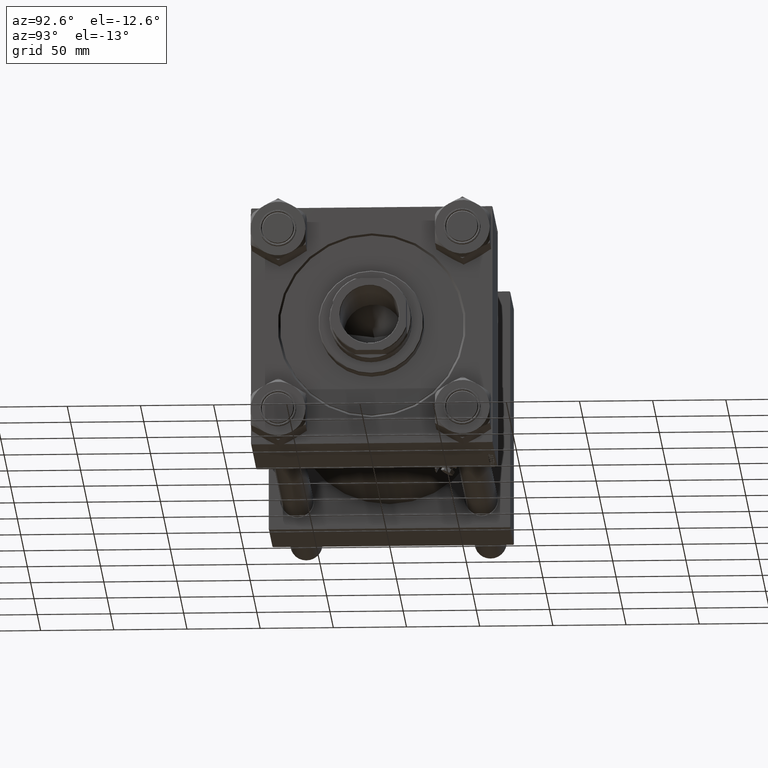
[diagram: clean part render]
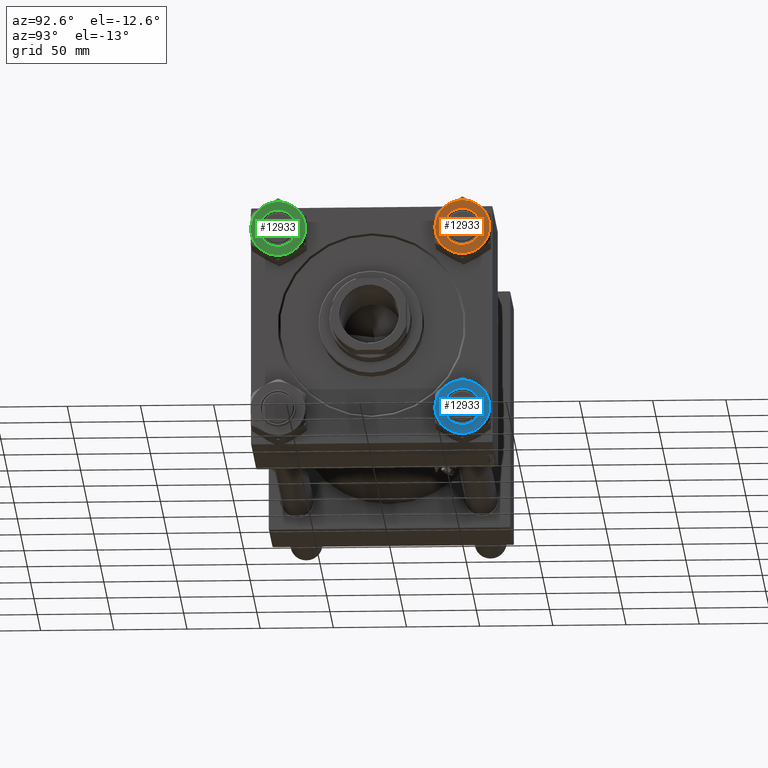
[diagram: same view with three faces highlighted in distinct colors, each labeled with its STEP entity id]
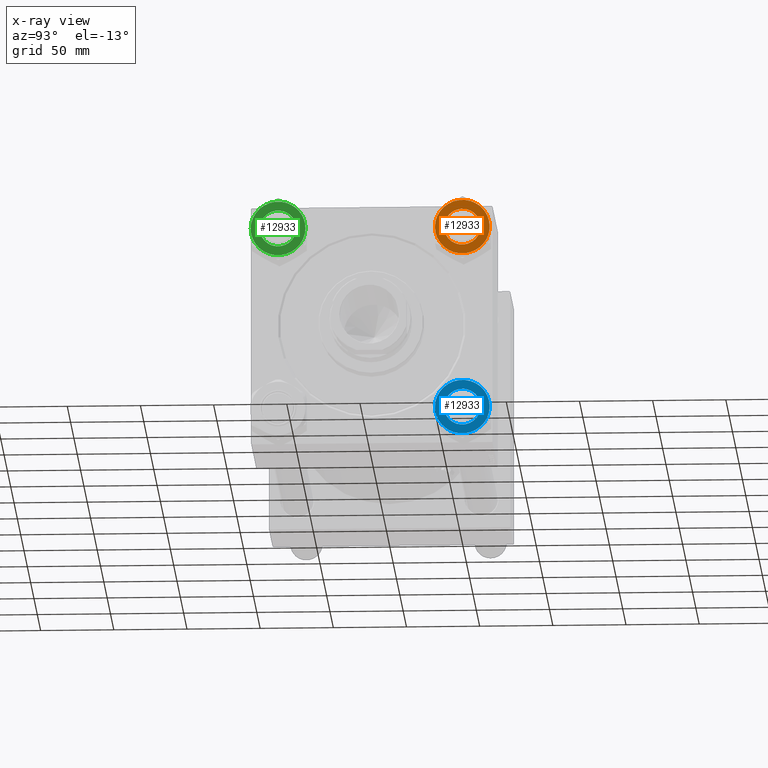
[diagram: x-ray of the same camera — body ghosted, the three highlighted faces saturated]
A machine part, auxiliary view with three faces highlighted in distinct colors.
The next image is the same camera in x-ray (body ghosted, the three faces saturated) — at least one of them is partly hidden behind the body in this view.
Their STEP definitions:

[orange] entity #12933 — the highlighted planar face has unit normal (-1, 0, 0).
#135 = DIRECTION ( 'NONE',  ( 0.000000000000000000, 0.000000000000000000, -1.000000000000000000 ) ) ;
#1290 = CIRCLE ( 'NONE', #46971, 18.72346922981956041 ) ;
#1844 = EDGE_LOOP ( 'NONE', ( #8580, #41072 ) ) ;
#2152 = VERTEX_POINT ( 'NONE', #36963 ) ;
#2811 = EDGE_CURVE ( 'NONE', #46040, #33059, #42408, .T. ) ;
#4486 = DIRECTION ( 'NONE',  ( 0.000000000000000000, -0.000000000000000000, -1.000000000000000000 ) ) ;
#4624 = CIRCLE ( 'NONE', #6256, 18.72346922981956041 ) ;
#4825 = DIRECTION ( 'NONE',  ( 1.000000000000000000, 0.000000000000000000, 0.000000000000000000 ) ) ;
#6256 = AXIS2_PLACEMENT_3D ( 'NONE', #47122, #28378, #11766 ) ;
#6303 = CARTESIAN_POINT ( 'NONE',  ( 0.000000000000000000, 0.000000000000000000, 0.000000000000000000 ) ) ;
#7354 = ORIENTED_EDGE ( 'NONE', *, *, #18723, .F. ) ;
#8580 = ORIENTED_EDGE ( 'NONE', *, *, #46006, .F. ) ;
#8657 = CARTESIAN_POINT ( 'NONE',  ( 0.000000000000000000, 0.000000000000000000, 0.000000000000000000 ) ) ;
#8703 = DIRECTION ( 'NONE',  ( -1.000000000000000000, 0.000000000000000000, -0.000000000000000000 ) ) ;
#8876 = VERTEX_POINT ( 'NONE', #26591 ) ;
#10019 = DIRECTION ( 'NONE',  ( -1.000000000000000000, 0.000000000000000000, 0.000000000000000000 ) ) ;
#10195 = AXIS2_PLACEMENT_3D ( 'NONE', #44202, #36151, #16409 ) ;
#10403 = ORIENTED_EDGE ( 'NONE', *, *, #49753, .T. ) ;
#10541 = CIRCLE ( 'NONE', #49585, 18.72346922981956041 ) ;
#10887 = DIRECTION ( 'NONE',  ( -1.000000000000000000, 0.000000000000000000, 0.000000000000000000 ) ) ;
#11766 = DIRECTION ( 'NONE',  ( -1.000000000000000000, 0.000000000000000000, 0.000000000000000000 ) ) ;
#12025 = AXIS2_PLACEMENT_3D ( 'NONE', #19652, #135, #8703 ) ;
#12220 = VERTEX_POINT ( 'NONE', #43424 ) ;
#12933 = ADVANCED_FACE ( 'NONE', ( #16511, #28194 ), #39380, .F. ) ;
#13539 = CIRCLE ( 'NONE', #10195, 12.50000000000000000 ) ;
#14027 = CARTESIAN_POINT ( 'NONE',  ( 12.50000000000000000, 1.530808498934191521E-15, 0.000000000000000000 ) ) ;
#14271 = EDGE_CURVE ( 'NONE', #30986, #12220, #1290, .T. ) ;
#15325 = EDGE_CURVE ( 'NONE', #2152, #46040, #25300, .T. ) ;
#15718 = VERTEX_POINT ( 'NONE', #41925 ) ;
#16409 = DIRECTION ( 'NONE',  ( 1.000000000000000000, 0.000000000000000000, 0.000000000000000000 ) ) ;
#16511 = FACE_BOUND ( 'NONE', #1844, .T. ) ;
#16724 = DIRECTION ( 'NONE',  ( -1.000000000000000000, 0.000000000000000000, 0.000000000000000000 ) ) ;
#16800 = VERTEX_POINT ( 'NONE', #14027 ) ;
#18723 = EDGE_CURVE ( 'NONE', #8876, #30986, #4624, .T. ) ;
#19652 = CARTESIAN_POINT ( 'NONE',  ( 0.000000000000000000, 0.000000000000000000, 0.000000000000000000 ) ) ;
#19812 = CIRCLE ( 'NONE', #27300, 18.72346922981956041 ) ;
#20456 = DIRECTION ( 'NONE',  ( 0.000000000000000000, 0.000000000000000000, 1.000000000000000000 ) ) ;
#21726 = CARTESIAN_POINT ( 'NONE',  ( 0.000000000000000000, 0.000000000000000000, 0.000000000000000000 ) ) ;
#22140 = ORIENTED_EDGE ( 'NONE', *, *, #25355, .F. ) ;
#22166 = DIRECTION ( 'NONE',  ( 0.000000000000000000, 0.000000000000000000, 1.000000000000000000 ) ) ;
#25300 = CIRCLE ( 'NONE', #27779, 18.72346922981956041 ) ;
#25355 = EDGE_CURVE ( 'NONE', #12220, #37404, #19812, .T. ) ;
#25364 = AXIS2_PLACEMENT_3D ( 'NONE', #8657, #4486, #16724 ) ;
#26591 = CARTESIAN_POINT ( 'NONE',  ( 16.21499999999998920, 9.361734614909789087, 0.000000000000000000 ) ) ;
#27300 = AXIS2_PLACEMENT_3D ( 'NONE', #49988, #30499, #49737 ) ;
#27483 = ORIENTED_EDGE ( 'NONE', *, *, #14271, .F. ) ;
#27779 = AXIS2_PLACEMENT_3D ( 'NONE', #21726, #49276, #10019 ) ;
#27794 = ORIENTED_EDGE ( 'NONE', *, *, #48616, .F. ) ;
#28086 = CARTESIAN_POINT ( 'NONE',  ( 0.000000000000000000, 0.000000000000000000, 0.000000000000000000 ) ) ;
#28194 = FACE_OUTER_BOUND ( 'NONE', #48655, .T. ) ;
#28378 = DIRECTION ( 'NONE',  ( 0.000000000000000000, -0.000000000000000000, -1.000000000000000000 ) ) ;
#30340 = CIRCLE ( 'NONE', #25364, 18.72346922981956041 ) ;
#30499 = DIRECTION ( 'NONE',  ( 0.000000000000000000, -0.000000000000000000, -1.000000000000000000 ) ) ;
#30933 = ORIENTED_EDGE ( 'NONE', *, *, #15325, .F. ) ;
#30986 = VERTEX_POINT ( 'NONE', #50478 ) ;
#32382 = CARTESIAN_POINT ( 'NONE',  ( 0.000000000000000000, 0.000000000000000000, 0.000000000000000000 ) ) ;
#33058 = CARTESIAN_POINT ( 'NONE',  ( -1.502314598737160570E-14, 18.72346922981957817, 0.000000000000000000 ) ) ;
#33059 = VERTEX_POINT ( 'NONE', #33058 ) ;
#33242 = AXIS2_PLACEMENT_3D ( 'NONE', #39714, #35822, #10887 ) ;
#35822 = DIRECTION ( 'NONE',  ( 0.000000000000000000, -0.000000000000000000, -1.000000000000000000 ) ) ;
#36151 = DIRECTION ( 'NONE',  ( 0.000000000000000000, 0.000000000000000000, 1.000000000000000000 ) ) ;
#36963 = CARTESIAN_POINT ( 'NONE',  ( -16.21499999999999275, -9.361734614909785535, 0.000000000000000000 ) ) ;
#37178 = ORIENTED_EDGE ( 'NONE', *, *, #2811, .F. ) ;
#37404 = VERTEX_POINT ( 'NONE', #39327 ) ;
#38370 = EDGE_CURVE ( 'NONE', #16800, #15718, #13539, .T. ) ;
#39327 = CARTESIAN_POINT ( 'NONE',  ( 1.802777518484590916E-14, -18.72346922981956041, 0.000000000000000000 ) ) ;
#39380 = PLANE ( 'NONE',  #12025 ) ;
#39714 = CARTESIAN_POINT ( 'NONE',  ( 0.000000000000000000, 0.000000000000000000, 0.000000000000000000 ) ) ;
#40033 = DIRECTION ( 'NONE',  ( -1.000000000000000000, 0.000000000000000000, 0.000000000000000000 ) ) ;
#41072 = ORIENTED_EDGE ( 'NONE', *, *, #38370, .F. ) ;
#41864 = AXIS2_PLACEMENT_3D ( 'NONE', #32382, #20456, #4825 ) ;
#41925 = CARTESIAN_POINT ( 'NONE',  ( -12.50000000000000000, 0.000000000000000000, 0.000000000000000000 ) ) ;
#41991 = CARTESIAN_POINT ( 'NONE',  ( -16.21499999999999986, 9.361734614909769547, 0.000000000000000000 ) ) ;
#42408 = CIRCLE ( 'NONE', #33242, 18.72346922981956041 ) ;
#43424 = CARTESIAN_POINT ( 'NONE',  ( 16.21500000000000341, -9.361734614909767771, 0.000000000000000000 ) ) ;
#44202 = CARTESIAN_POINT ( 'NONE',  ( 0.000000000000000000, 0.000000000000000000, 0.000000000000000000 ) ) ;
#46006 = EDGE_CURVE ( 'NONE', #15718, #16800, #48628, .T. ) ;
#46040 = VERTEX_POINT ( 'NONE', #41991 ) ;
#46971 = AXIS2_PLACEMENT_3D ( 'NONE', #28086, #48092, #40033 ) ;
#47122 = CARTESIAN_POINT ( 'NONE',  ( 0.000000000000000000, 0.000000000000000000, 0.000000000000000000 ) ) ;
#48092 = DIRECTION ( 'NONE',  ( 0.000000000000000000, -0.000000000000000000, -1.000000000000000000 ) ) ;
#48616 = EDGE_CURVE ( 'NONE', #37404, #2152, #30340, .T. ) ;
#48628 = CIRCLE ( 'NONE', #41864, 12.50000000000000000 ) ;
#48655 = EDGE_LOOP ( 'NONE', ( #37178, #30933, #27794, #22140, #27483, #7354, #10403 ) ) ;
#48945 = DIRECTION ( 'NONE',  ( 1.000000000000000000, 0.000000000000000000, 0.000000000000000000 ) ) ;
#49276 = DIRECTION ( 'NONE',  ( 0.000000000000000000, -0.000000000000000000, -1.000000000000000000 ) ) ;
#49585 = AXIS2_PLACEMENT_3D ( 'NONE', #6303, #22166, #48945 ) ;
#49737 = DIRECTION ( 'NONE',  ( -1.000000000000000000, 0.000000000000000000, 0.000000000000000000 ) ) ;
#49753 = EDGE_CURVE ( 'NONE', #8876, #33059, #10541, .T. ) ;
#49988 = CARTESIAN_POINT ( 'NONE',  ( 0.000000000000000000, 0.000000000000000000, 0.000000000000000000 ) ) ;
#50478 = CARTESIAN_POINT ( 'NONE',  ( 18.72346922981956041, 0.000000000000000000, 0.000000000000000000 ) ) ;

[blue] entity #12933 — the highlighted planar face has unit normal (-1, 0, -0).
#135 = DIRECTION ( 'NONE',  ( 0.000000000000000000, 0.000000000000000000, -1.000000000000000000 ) ) ;
#1290 = CIRCLE ( 'NONE', #46971, 18.72346922981956041 ) ;
#1844 = EDGE_LOOP ( 'NONE', ( #8580, #41072 ) ) ;
#2152 = VERTEX_POINT ( 'NONE', #36963 ) ;
#2811 = EDGE_CURVE ( 'NONE', #46040, #33059, #42408, .T. ) ;
#4486 = DIRECTION ( 'NONE',  ( 0.000000000000000000, -0.000000000000000000, -1.000000000000000000 ) ) ;
#4624 = CIRCLE ( 'NONE', #6256, 18.72346922981956041 ) ;
#4825 = DIRECTION ( 'NONE',  ( 1.000000000000000000, 0.000000000000000000, 0.000000000000000000 ) ) ;
#6256 = AXIS2_PLACEMENT_3D ( 'NONE', #47122, #28378, #11766 ) ;
#6303 = CARTESIAN_POINT ( 'NONE',  ( 0.000000000000000000, 0.000000000000000000, 0.000000000000000000 ) ) ;
#7354 = ORIENTED_EDGE ( 'NONE', *, *, #18723, .F. ) ;
#8580 = ORIENTED_EDGE ( 'NONE', *, *, #46006, .F. ) ;
#8657 = CARTESIAN_POINT ( 'NONE',  ( 0.000000000000000000, 0.000000000000000000, 0.000000000000000000 ) ) ;
#8703 = DIRECTION ( 'NONE',  ( -1.000000000000000000, 0.000000000000000000, -0.000000000000000000 ) ) ;
#8876 = VERTEX_POINT ( 'NONE', #26591 ) ;
#10019 = DIRECTION ( 'NONE',  ( -1.000000000000000000, 0.000000000000000000, 0.000000000000000000 ) ) ;
#10195 = AXIS2_PLACEMENT_3D ( 'NONE', #44202, #36151, #16409 ) ;
#10403 = ORIENTED_EDGE ( 'NONE', *, *, #49753, .T. ) ;
#10541 = CIRCLE ( 'NONE', #49585, 18.72346922981956041 ) ;
#10887 = DIRECTION ( 'NONE',  ( -1.000000000000000000, 0.000000000000000000, 0.000000000000000000 ) ) ;
#11766 = DIRECTION ( 'NONE',  ( -1.000000000000000000, 0.000000000000000000, 0.000000000000000000 ) ) ;
#12025 = AXIS2_PLACEMENT_3D ( 'NONE', #19652, #135, #8703 ) ;
#12220 = VERTEX_POINT ( 'NONE', #43424 ) ;
#12933 = ADVANCED_FACE ( 'NONE', ( #16511, #28194 ), #39380, .F. ) ;
#13539 = CIRCLE ( 'NONE', #10195, 12.50000000000000000 ) ;
#14027 = CARTESIAN_POINT ( 'NONE',  ( 12.50000000000000000, 1.530808498934191521E-15, 0.000000000000000000 ) ) ;
#14271 = EDGE_CURVE ( 'NONE', #30986, #12220, #1290, .T. ) ;
#15325 = EDGE_CURVE ( 'NONE', #2152, #46040, #25300, .T. ) ;
#15718 = VERTEX_POINT ( 'NONE', #41925 ) ;
#16409 = DIRECTION ( 'NONE',  ( 1.000000000000000000, 0.000000000000000000, 0.000000000000000000 ) ) ;
#16511 = FACE_BOUND ( 'NONE', #1844, .T. ) ;
#16724 = DIRECTION ( 'NONE',  ( -1.000000000000000000, 0.000000000000000000, 0.000000000000000000 ) ) ;
#16800 = VERTEX_POINT ( 'NONE', #14027 ) ;
#18723 = EDGE_CURVE ( 'NONE', #8876, #30986, #4624, .T. ) ;
#19652 = CARTESIAN_POINT ( 'NONE',  ( 0.000000000000000000, 0.000000000000000000, 0.000000000000000000 ) ) ;
#19812 = CIRCLE ( 'NONE', #27300, 18.72346922981956041 ) ;
#20456 = DIRECTION ( 'NONE',  ( 0.000000000000000000, 0.000000000000000000, 1.000000000000000000 ) ) ;
#21726 = CARTESIAN_POINT ( 'NONE',  ( 0.000000000000000000, 0.000000000000000000, 0.000000000000000000 ) ) ;
#22140 = ORIENTED_EDGE ( 'NONE', *, *, #25355, .F. ) ;
#22166 = DIRECTION ( 'NONE',  ( 0.000000000000000000, 0.000000000000000000, 1.000000000000000000 ) ) ;
#25300 = CIRCLE ( 'NONE', #27779, 18.72346922981956041 ) ;
#25355 = EDGE_CURVE ( 'NONE', #12220, #37404, #19812, .T. ) ;
#25364 = AXIS2_PLACEMENT_3D ( 'NONE', #8657, #4486, #16724 ) ;
#26591 = CARTESIAN_POINT ( 'NONE',  ( 16.21499999999998920, 9.361734614909789087, 0.000000000000000000 ) ) ;
#27300 = AXIS2_PLACEMENT_3D ( 'NONE', #49988, #30499, #49737 ) ;
#27483 = ORIENTED_EDGE ( 'NONE', *, *, #14271, .F. ) ;
#27779 = AXIS2_PLACEMENT_3D ( 'NONE', #21726, #49276, #10019 ) ;
#27794 = ORIENTED_EDGE ( 'NONE', *, *, #48616, .F. ) ;
#28086 = CARTESIAN_POINT ( 'NONE',  ( 0.000000000000000000, 0.000000000000000000, 0.000000000000000000 ) ) ;
#28194 = FACE_OUTER_BOUND ( 'NONE', #48655, .T. ) ;
#28378 = DIRECTION ( 'NONE',  ( 0.000000000000000000, -0.000000000000000000, -1.000000000000000000 ) ) ;
#30340 = CIRCLE ( 'NONE', #25364, 18.72346922981956041 ) ;
#30499 = DIRECTION ( 'NONE',  ( 0.000000000000000000, -0.000000000000000000, -1.000000000000000000 ) ) ;
#30933 = ORIENTED_EDGE ( 'NONE', *, *, #15325, .F. ) ;
#30986 = VERTEX_POINT ( 'NONE', #50478 ) ;
#32382 = CARTESIAN_POINT ( 'NONE',  ( 0.000000000000000000, 0.000000000000000000, 0.000000000000000000 ) ) ;
#33058 = CARTESIAN_POINT ( 'NONE',  ( -1.502314598737160570E-14, 18.72346922981957817, 0.000000000000000000 ) ) ;
#33059 = VERTEX_POINT ( 'NONE', #33058 ) ;
#33242 = AXIS2_PLACEMENT_3D ( 'NONE', #39714, #35822, #10887 ) ;
#35822 = DIRECTION ( 'NONE',  ( 0.000000000000000000, -0.000000000000000000, -1.000000000000000000 ) ) ;
#36151 = DIRECTION ( 'NONE',  ( 0.000000000000000000, 0.000000000000000000, 1.000000000000000000 ) ) ;
#36963 = CARTESIAN_POINT ( 'NONE',  ( -16.21499999999999275, -9.361734614909785535, 0.000000000000000000 ) ) ;
#37178 = ORIENTED_EDGE ( 'NONE', *, *, #2811, .F. ) ;
#37404 = VERTEX_POINT ( 'NONE', #39327 ) ;
#38370 = EDGE_CURVE ( 'NONE', #16800, #15718, #13539, .T. ) ;
#39327 = CARTESIAN_POINT ( 'NONE',  ( 1.802777518484590916E-14, -18.72346922981956041, 0.000000000000000000 ) ) ;
#39380 = PLANE ( 'NONE',  #12025 ) ;
#39714 = CARTESIAN_POINT ( 'NONE',  ( 0.000000000000000000, 0.000000000000000000, 0.000000000000000000 ) ) ;
#40033 = DIRECTION ( 'NONE',  ( -1.000000000000000000, 0.000000000000000000, 0.000000000000000000 ) ) ;
#41072 = ORIENTED_EDGE ( 'NONE', *, *, #38370, .F. ) ;
#41864 = AXIS2_PLACEMENT_3D ( 'NONE', #32382, #20456, #4825 ) ;
#41925 = CARTESIAN_POINT ( 'NONE',  ( -12.50000000000000000, 0.000000000000000000, 0.000000000000000000 ) ) ;
#41991 = CARTESIAN_POINT ( 'NONE',  ( -16.21499999999999986, 9.361734614909769547, 0.000000000000000000 ) ) ;
#42408 = CIRCLE ( 'NONE', #33242, 18.72346922981956041 ) ;
#43424 = CARTESIAN_POINT ( 'NONE',  ( 16.21500000000000341, -9.361734614909767771, 0.000000000000000000 ) ) ;
#44202 = CARTESIAN_POINT ( 'NONE',  ( 0.000000000000000000, 0.000000000000000000, 0.000000000000000000 ) ) ;
#46006 = EDGE_CURVE ( 'NONE', #15718, #16800, #48628, .T. ) ;
#46040 = VERTEX_POINT ( 'NONE', #41991 ) ;
#46971 = AXIS2_PLACEMENT_3D ( 'NONE', #28086, #48092, #40033 ) ;
#47122 = CARTESIAN_POINT ( 'NONE',  ( 0.000000000000000000, 0.000000000000000000, 0.000000000000000000 ) ) ;
#48092 = DIRECTION ( 'NONE',  ( 0.000000000000000000, -0.000000000000000000, -1.000000000000000000 ) ) ;
#48616 = EDGE_CURVE ( 'NONE', #37404, #2152, #30340, .T. ) ;
#48628 = CIRCLE ( 'NONE', #41864, 12.50000000000000000 ) ;
#48655 = EDGE_LOOP ( 'NONE', ( #37178, #30933, #27794, #22140, #27483, #7354, #10403 ) ) ;
#48945 = DIRECTION ( 'NONE',  ( 1.000000000000000000, 0.000000000000000000, 0.000000000000000000 ) ) ;
#49276 = DIRECTION ( 'NONE',  ( 0.000000000000000000, -0.000000000000000000, -1.000000000000000000 ) ) ;
#49585 = AXIS2_PLACEMENT_3D ( 'NONE', #6303, #22166, #48945 ) ;
#49737 = DIRECTION ( 'NONE',  ( -1.000000000000000000, 0.000000000000000000, 0.000000000000000000 ) ) ;
#49753 = EDGE_CURVE ( 'NONE', #8876, #33059, #10541, .T. ) ;
#49988 = CARTESIAN_POINT ( 'NONE',  ( 0.000000000000000000, 0.000000000000000000, 0.000000000000000000 ) ) ;
#50478 = CARTESIAN_POINT ( 'NONE',  ( 18.72346922981956041, 0.000000000000000000, 0.000000000000000000 ) ) ;

[green] entity #12933 — the highlighted planar face has unit normal (-1, -0, 0).
#135 = DIRECTION ( 'NONE',  ( 0.000000000000000000, 0.000000000000000000, -1.000000000000000000 ) ) ;
#1290 = CIRCLE ( 'NONE', #46971, 18.72346922981956041 ) ;
#1844 = EDGE_LOOP ( 'NONE', ( #8580, #41072 ) ) ;
#2152 = VERTEX_POINT ( 'NONE', #36963 ) ;
#2811 = EDGE_CURVE ( 'NONE', #46040, #33059, #42408, .T. ) ;
#4486 = DIRECTION ( 'NONE',  ( 0.000000000000000000, -0.000000000000000000, -1.000000000000000000 ) ) ;
#4624 = CIRCLE ( 'NONE', #6256, 18.72346922981956041 ) ;
#4825 = DIRECTION ( 'NONE',  ( 1.000000000000000000, 0.000000000000000000, 0.000000000000000000 ) ) ;
#6256 = AXIS2_PLACEMENT_3D ( 'NONE', #47122, #28378, #11766 ) ;
#6303 = CARTESIAN_POINT ( 'NONE',  ( 0.000000000000000000, 0.000000000000000000, 0.000000000000000000 ) ) ;
#7354 = ORIENTED_EDGE ( 'NONE', *, *, #18723, .F. ) ;
#8580 = ORIENTED_EDGE ( 'NONE', *, *, #46006, .F. ) ;
#8657 = CARTESIAN_POINT ( 'NONE',  ( 0.000000000000000000, 0.000000000000000000, 0.000000000000000000 ) ) ;
#8703 = DIRECTION ( 'NONE',  ( -1.000000000000000000, 0.000000000000000000, -0.000000000000000000 ) ) ;
#8876 = VERTEX_POINT ( 'NONE', #26591 ) ;
#10019 = DIRECTION ( 'NONE',  ( -1.000000000000000000, 0.000000000000000000, 0.000000000000000000 ) ) ;
#10195 = AXIS2_PLACEMENT_3D ( 'NONE', #44202, #36151, #16409 ) ;
#10403 = ORIENTED_EDGE ( 'NONE', *, *, #49753, .T. ) ;
#10541 = CIRCLE ( 'NONE', #49585, 18.72346922981956041 ) ;
#10887 = DIRECTION ( 'NONE',  ( -1.000000000000000000, 0.000000000000000000, 0.000000000000000000 ) ) ;
#11766 = DIRECTION ( 'NONE',  ( -1.000000000000000000, 0.000000000000000000, 0.000000000000000000 ) ) ;
#12025 = AXIS2_PLACEMENT_3D ( 'NONE', #19652, #135, #8703 ) ;
#12220 = VERTEX_POINT ( 'NONE', #43424 ) ;
#12933 = ADVANCED_FACE ( 'NONE', ( #16511, #28194 ), #39380, .F. ) ;
#13539 = CIRCLE ( 'NONE', #10195, 12.50000000000000000 ) ;
#14027 = CARTESIAN_POINT ( 'NONE',  ( 12.50000000000000000, 1.530808498934191521E-15, 0.000000000000000000 ) ) ;
#14271 = EDGE_CURVE ( 'NONE', #30986, #12220, #1290, .T. ) ;
#15325 = EDGE_CURVE ( 'NONE', #2152, #46040, #25300, .T. ) ;
#15718 = VERTEX_POINT ( 'NONE', #41925 ) ;
#16409 = DIRECTION ( 'NONE',  ( 1.000000000000000000, 0.000000000000000000, 0.000000000000000000 ) ) ;
#16511 = FACE_BOUND ( 'NONE', #1844, .T. ) ;
#16724 = DIRECTION ( 'NONE',  ( -1.000000000000000000, 0.000000000000000000, 0.000000000000000000 ) ) ;
#16800 = VERTEX_POINT ( 'NONE', #14027 ) ;
#18723 = EDGE_CURVE ( 'NONE', #8876, #30986, #4624, .T. ) ;
#19652 = CARTESIAN_POINT ( 'NONE',  ( 0.000000000000000000, 0.000000000000000000, 0.000000000000000000 ) ) ;
#19812 = CIRCLE ( 'NONE', #27300, 18.72346922981956041 ) ;
#20456 = DIRECTION ( 'NONE',  ( 0.000000000000000000, 0.000000000000000000, 1.000000000000000000 ) ) ;
#21726 = CARTESIAN_POINT ( 'NONE',  ( 0.000000000000000000, 0.000000000000000000, 0.000000000000000000 ) ) ;
#22140 = ORIENTED_EDGE ( 'NONE', *, *, #25355, .F. ) ;
#22166 = DIRECTION ( 'NONE',  ( 0.000000000000000000, 0.000000000000000000, 1.000000000000000000 ) ) ;
#25300 = CIRCLE ( 'NONE', #27779, 18.72346922981956041 ) ;
#25355 = EDGE_CURVE ( 'NONE', #12220, #37404, #19812, .T. ) ;
#25364 = AXIS2_PLACEMENT_3D ( 'NONE', #8657, #4486, #16724 ) ;
#26591 = CARTESIAN_POINT ( 'NONE',  ( 16.21499999999998920, 9.361734614909789087, 0.000000000000000000 ) ) ;
#27300 = AXIS2_PLACEMENT_3D ( 'NONE', #49988, #30499, #49737 ) ;
#27483 = ORIENTED_EDGE ( 'NONE', *, *, #14271, .F. ) ;
#27779 = AXIS2_PLACEMENT_3D ( 'NONE', #21726, #49276, #10019 ) ;
#27794 = ORIENTED_EDGE ( 'NONE', *, *, #48616, .F. ) ;
#28086 = CARTESIAN_POINT ( 'NONE',  ( 0.000000000000000000, 0.000000000000000000, 0.000000000000000000 ) ) ;
#28194 = FACE_OUTER_BOUND ( 'NONE', #48655, .T. ) ;
#28378 = DIRECTION ( 'NONE',  ( 0.000000000000000000, -0.000000000000000000, -1.000000000000000000 ) ) ;
#30340 = CIRCLE ( 'NONE', #25364, 18.72346922981956041 ) ;
#30499 = DIRECTION ( 'NONE',  ( 0.000000000000000000, -0.000000000000000000, -1.000000000000000000 ) ) ;
#30933 = ORIENTED_EDGE ( 'NONE', *, *, #15325, .F. ) ;
#30986 = VERTEX_POINT ( 'NONE', #50478 ) ;
#32382 = CARTESIAN_POINT ( 'NONE',  ( 0.000000000000000000, 0.000000000000000000, 0.000000000000000000 ) ) ;
#33058 = CARTESIAN_POINT ( 'NONE',  ( -1.502314598737160570E-14, 18.72346922981957817, 0.000000000000000000 ) ) ;
#33059 = VERTEX_POINT ( 'NONE', #33058 ) ;
#33242 = AXIS2_PLACEMENT_3D ( 'NONE', #39714, #35822, #10887 ) ;
#35822 = DIRECTION ( 'NONE',  ( 0.000000000000000000, -0.000000000000000000, -1.000000000000000000 ) ) ;
#36151 = DIRECTION ( 'NONE',  ( 0.000000000000000000, 0.000000000000000000, 1.000000000000000000 ) ) ;
#36963 = CARTESIAN_POINT ( 'NONE',  ( -16.21499999999999275, -9.361734614909785535, 0.000000000000000000 ) ) ;
#37178 = ORIENTED_EDGE ( 'NONE', *, *, #2811, .F. ) ;
#37404 = VERTEX_POINT ( 'NONE', #39327 ) ;
#38370 = EDGE_CURVE ( 'NONE', #16800, #15718, #13539, .T. ) ;
#39327 = CARTESIAN_POINT ( 'NONE',  ( 1.802777518484590916E-14, -18.72346922981956041, 0.000000000000000000 ) ) ;
#39380 = PLANE ( 'NONE',  #12025 ) ;
#39714 = CARTESIAN_POINT ( 'NONE',  ( 0.000000000000000000, 0.000000000000000000, 0.000000000000000000 ) ) ;
#40033 = DIRECTION ( 'NONE',  ( -1.000000000000000000, 0.000000000000000000, 0.000000000000000000 ) ) ;
#41072 = ORIENTED_EDGE ( 'NONE', *, *, #38370, .F. ) ;
#41864 = AXIS2_PLACEMENT_3D ( 'NONE', #32382, #20456, #4825 ) ;
#41925 = CARTESIAN_POINT ( 'NONE',  ( -12.50000000000000000, 0.000000000000000000, 0.000000000000000000 ) ) ;
#41991 = CARTESIAN_POINT ( 'NONE',  ( -16.21499999999999986, 9.361734614909769547, 0.000000000000000000 ) ) ;
#42408 = CIRCLE ( 'NONE', #33242, 18.72346922981956041 ) ;
#43424 = CARTESIAN_POINT ( 'NONE',  ( 16.21500000000000341, -9.361734614909767771, 0.000000000000000000 ) ) ;
#44202 = CARTESIAN_POINT ( 'NONE',  ( 0.000000000000000000, 0.000000000000000000, 0.000000000000000000 ) ) ;
#46006 = EDGE_CURVE ( 'NONE', #15718, #16800, #48628, .T. ) ;
#46040 = VERTEX_POINT ( 'NONE', #41991 ) ;
#46971 = AXIS2_PLACEMENT_3D ( 'NONE', #28086, #48092, #40033 ) ;
#47122 = CARTESIAN_POINT ( 'NONE',  ( 0.000000000000000000, 0.000000000000000000, 0.000000000000000000 ) ) ;
#48092 = DIRECTION ( 'NONE',  ( 0.000000000000000000, -0.000000000000000000, -1.000000000000000000 ) ) ;
#48616 = EDGE_CURVE ( 'NONE', #37404, #2152, #30340, .T. ) ;
#48628 = CIRCLE ( 'NONE', #41864, 12.50000000000000000 ) ;
#48655 = EDGE_LOOP ( 'NONE', ( #37178, #30933, #27794, #22140, #27483, #7354, #10403 ) ) ;
#48945 = DIRECTION ( 'NONE',  ( 1.000000000000000000, 0.000000000000000000, 0.000000000000000000 ) ) ;
#49276 = DIRECTION ( 'NONE',  ( 0.000000000000000000, -0.000000000000000000, -1.000000000000000000 ) ) ;
#49585 = AXIS2_PLACEMENT_3D ( 'NONE', #6303, #22166, #48945 ) ;
#49737 = DIRECTION ( 'NONE',  ( -1.000000000000000000, 0.000000000000000000, 0.000000000000000000 ) ) ;
#49753 = EDGE_CURVE ( 'NONE', #8876, #33059, #10541, .T. ) ;
#49988 = CARTESIAN_POINT ( 'NONE',  ( 0.000000000000000000, 0.000000000000000000, 0.000000000000000000 ) ) ;
#50478 = CARTESIAN_POINT ( 'NONE',  ( 18.72346922981956041, 0.000000000000000000, 0.000000000000000000 ) ) ;